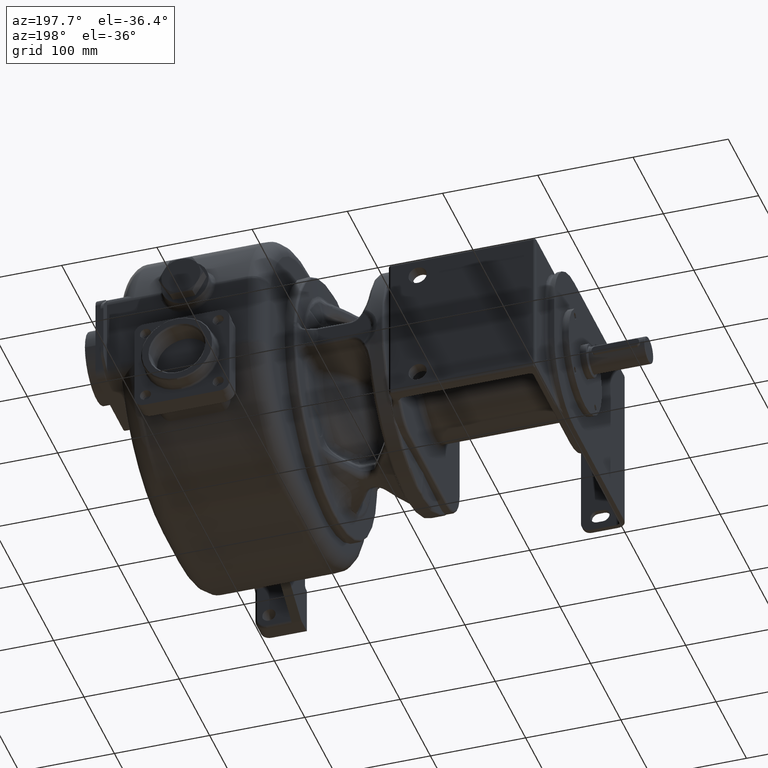
[diagram: clean part render]
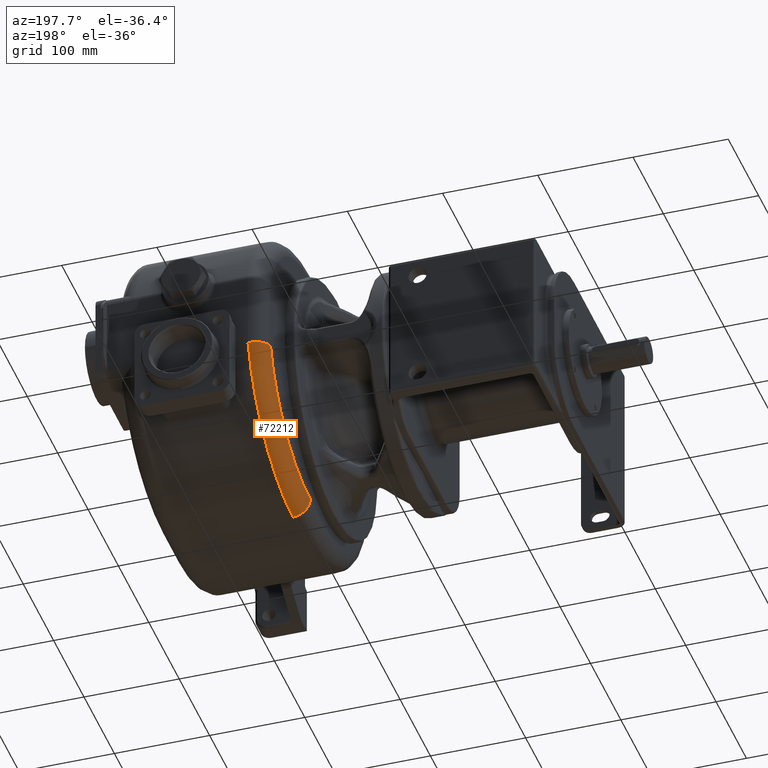
[diagram: same view with one face highlighted and labeled with its STEP entity id]
A machine part, auxiliary view. The second image highlights one B-rep face of the part: STEP entity #72212.
In plain terms, the highlighted toroidal blend (fillet) surface has major radius 136 mm and minor (blend) radius 18 mm.
Its self-contained STEP definition (entity closure, byte-faithful):
#342=CARTESIAN_POINT('',(-1.05E2,2.111789489881E2,-9.5E0));
#343=DIRECTION('',(-1.E0,0.E0,0.E0));
#344=DIRECTION('',(0.E0,9.619201134888E-1,-2.733307433600E-1));
#345=AXIS2_PLACEMENT_3D('',#342,#343,#344);
#25226=CARTESIAN_POINT('',(-8.7E1,2.111789489881E2,-9.5E0));
#25227=DIRECTION('',(-1.E0,0.E0,0.E0));
#25228=DIRECTION('',(0.E0,9.635285819272E-1,-2.676054405451E-1));
#25229=AXIS2_PLACEMENT_3D('',#25226,#25227,#25228);
#26001=CARTESIAN_POINT('',(-1.05E2,3.420000000036E2,-4.667327820096E1));
#26002=CARTESIAN_POINT('',(-1.049998920679E2,3.422004800343E2,
-4.672001957167E1));
#26003=CARTESIAN_POINT('',(-1.049930001228E2,3.426008132062E2,
-4.681511844680E1));
#26004=CARTESIAN_POINT('',(-1.049613114703E2,3.432005728086E2,
-4.695434824712E1));
#26005=CARTESIAN_POINT('',(-1.049087504277E2,3.437981325680E2,
-4.709399123800E1));
#26006=CARTESIAN_POINT('',(-1.048353213802E2,3.443931730072E2,
-4.723281240541E1));
#26007=CARTESIAN_POINT('',(-1.047411627606E2,3.449850836100E2,
-4.737093117566E1));
#26008=CARTESIAN_POINT('',(-1.046263831929E2,3.455733472332E2,
-4.750808476779E1));
#26009=CARTESIAN_POINT('',(-1.044911042318E2,3.461574178532E2,
-4.764416438861E1));
#26010=CARTESIAN_POINT('',(-1.043354490496E2,3.467368317722E2,
-4.777875996404E1));
#26011=CARTESIAN_POINT('',(-1.041595718797E2,3.473109486064E2,
-4.791179503436E1));
#26012=CARTESIAN_POINT('',(-1.039636383651E2,3.478791419007E2,
-4.804321077046E1));
#26013=CARTESIAN_POINT('',(-1.037478404851E2,3.484407542396E2,
-4.817293368687E1));
#26014=CARTESIAN_POINT('',(-1.035124586469E2,3.489949797538E2,
-4.830085331073E1));
#26015=CARTESIAN_POINT('',(-1.032578036639E2,3.495410541776E2,
-4.842685189824E1));
#26016=CARTESIAN_POINT('',(-1.029842319887E2,3.500782077933E2,
-4.855083056239E1));
#26017=CARTESIAN_POINT('',(-1.026920523773E2,3.506059510813E2,
-4.867233009499E1));
#26018=CARTESIAN_POINT('',(-1.023815599216E2,3.511237285840E2,
-4.879132760336E1));
#26019=CARTESIAN_POINT('',(-1.020530556969E2,3.516310111193E2,
-4.890773923915E1));
#26020=CARTESIAN_POINT('',(-1.017069160043E2,3.521271774249E2,
-4.902147450904E1));
#26021=CARTESIAN_POINT('',(-1.013435848557E2,3.526115668203E2,
-4.913241783386E1));
#26022=CARTESIAN_POINT('',(-1.009635299563E2,3.530835431697E2,
-4.924047189872E1));
#26023=CARTESIAN_POINT('',(-1.005672264549E2,3.535425351767E2,
-4.934547374055E1));
#26024=CARTESIAN_POINT('',(-1.001551280531E2,3.539880697965E2,
-4.944715749621E1));
#26025=CARTESIAN_POINT('',(-9.972771169766E1,3.544196081427E2,
-4.954551648368E1));
#26026=CARTESIAN_POINT('',(-9.928547184554E1,3.548366461037E2,
-4.964047581861E1));
#26027=CARTESIAN_POINT('',(-9.882893634059E1,3.552386782256E2,
-4.973197138734E1));
#26028=CARTESIAN_POINT('',(-9.835864837534E1,3.556252277999E2,
-4.981991547863E1));
#26029=CARTESIAN_POINT('',(-9.787517309802E1,3.559958240894E2,
-4.990425964529E1));
#26030=CARTESIAN_POINT('',(-9.737904028696E1,3.563501057005E2,
-4.998477871238E1));
#26031=CARTESIAN_POINT('',(-9.687077358434E1,3.566877096687E2,
-5.006134582619E1));
#26032=CARTESIAN_POINT('',(-9.635090000843E1,3.570082525635E2,
-5.013396458804E1));
#26033=CARTESIAN_POINT('',(-9.582000889400E1,3.573113453613E2,
-5.020258617476E1));
#26034=CARTESIAN_POINT('',(-9.527877076211E1,3.575965842883E2,
-5.026715678436E1));
#26035=CARTESIAN_POINT('',(-9.472785915100E1,3.578636073572E2,
-5.032760680043E1));
#26036=CARTESIAN_POINT('',(-9.416796474182E1,3.581120747903E2,
-5.038388463492E1));
#26037=CARTESIAN_POINT('',(-9.359978939788E1,3.583417150725E2,
-5.043580513144E1));
#26038=CARTESIAN_POINT('',(-9.302403262914E1,3.585522455506E2,
-5.048334864353E1));
#26039=CARTESIAN_POINT('',(-9.244141675930E1,3.587434082817E2,
-5.052649713033E1));
#26040=CARTESIAN_POINT('',(-9.185258407772E1,3.589150031108E2,
-5.056522970152E1));
#26041=CARTESIAN_POINT('',(-9.125817062831E1,3.590668529178E2,
-5.059951609771E1));
#26042=CARTESIAN_POINT('',(-9.065881455892E1,3.591988001807E2,
-5.062931726637E1));
#26043=CARTESIAN_POINT('',(-9.005517137775E1,3.593107077206E2,
-5.065457622052E1));
#26044=CARTESIAN_POINT('',(-8.944792509476E1,3.594024568183E2,
-5.067520719249E1));
#26045=CARTESIAN_POINT('',(-8.883788387116E1,3.594739140186E2,
-5.069126285896E1));
#26046=CARTESIAN_POINT('',(-8.822554032728E1,3.595249802979E2,
-5.070275270280E1));
#26047=CARTESIAN_POINT('',(-8.761258411664E1,3.595556172886E2,
-5.070967791487E1));
#26048=CARTESIAN_POINT('',(-8.720170431318E1,3.595623509760E2,
-5.071123483457E1));
#26049=CARTESIAN_POINT('',(-8.699601553717E1,3.595623477910E2,
-5.071124632752E1));
#26051=CARTESIAN_POINT('',(-8.7E1,2.111789489881E2,-1.455E2));
#26052=DIRECTION('',(0.E0,-1.E0,0.E0));
#26053=DIRECTION('',(-1.E0,0.E0,0.E0));
#26054=AXIS2_PLACEMENT_3D('',#26051,#26052,#26053);
#28620=CARTESIAN_POINT('',(-1.05E2,3.420000000009E2,-4.667319792734E1));
#28622=VERTEX_POINT('',#28620);
#28623=CARTESIAN_POINT('',(-1.05E2,2.111789489881E2,-1.455E2));
#28624=VERTEX_POINT('',#28623);
#28625=CARTESIAN_POINT('',(-8.7E1,3.595623506049E2,-5.071123784395E1));
#28626=CARTESIAN_POINT('',(-8.7E1,2.111789489881E2,-1.635E2));
#28627=VERTEX_POINT('',#28625);
#28628=VERTEX_POINT('',#28626);
#72200=CARTESIAN_POINT('',(-8.7E1,2.111789489881E2,-9.5E0));
#72201=DIRECTION('',(-1.E0,0.E0,0.E0));
#72202=DIRECTION('',(0.E0,-6.039586170138E-1,7.970156767184E-1));
#72203=AXIS2_PLACEMENT_3D('',#72200,#72201,#72202);
#72204=TOROIDAL_SURFACE('',#72203,1.36E2,1.8E1);
#72205=ORIENTED_EDGE('',*,*,#31242,.T.);
#72207=ORIENTED_EDGE('',*,*,#72206,.T.);
#72208=ORIENTED_EDGE('',*,*,#71195,.F.);
#72209=ORIENTED_EDGE('',*,*,#72194,.F.);
#72210=EDGE_LOOP('',(#72205,#72207,#72208,#72209));
#72211=FACE_OUTER_BOUND('',#72210,.F.);
#72212=ADVANCED_FACE('',(#72211),#72204,.T.);
#346=CIRCLE('',#345,1.36E2);
#25230=CIRCLE('',#25229,1.54E2);
#26050=B_SPLINE_CURVE_WITH_KNOTS('',3,(#26001,#26002,#26003,#26004,#26005,
#26006,#26007,#26008,#26009,#26010,#26011,#26012,#26013,#26014,#26015,#26016,
#26017,#26018,#26019,#26020,#26021,#26022,#26023,#26024,#26025,#26026,#26027,
#26028,#26029,#26030,#26031,#26032,#26033,#26034,#26035,#26036,#26037,#26038,
#26039,#26040,#26041,#26042,#26043,#26044,#26045,#26046,#26047,#26048,#26049),
.UNSPECIFIED.,.F.,.F.,(4,1,1,1,1,1,1,1,1,1,1,1,1,1,1,1,1,1,1,1,1,1,1,1,1,1,1,1,
1,1,1,1,1,1,1,1,1,1,1,1,1,1,1,1,1,1,4),(0.E0,2.173913043478E-2,
4.347826086957E-2,6.521739130435E-2,8.695652173913E-2,1.086956521739E-1,
1.304347826087E-1,1.521739130435E-1,1.739130434783E-1,1.956521739130E-1,
2.173913043478E-1,2.391304347826E-1,2.608695652174E-1,2.826086956522E-1,
3.043478260870E-1,3.260869565217E-1,3.478260869565E-1,3.695652173913E-1,
3.913043478261E-1,4.130434782609E-1,4.347826086957E-1,4.565217391304E-1,
4.782608695652E-1,5.E-1,5.217391304348E-1,5.434782608696E-1,5.652173913043E-1,
5.869565217391E-1,6.086956521739E-1,6.304347826087E-1,6.521739130435E-1,
6.739130434783E-1,6.956521739130E-1,7.173913043478E-1,7.391304347826E-1,
7.608695652174E-1,7.826086956522E-1,8.043478260870E-1,8.260869565217E-1,
8.478260869565E-1,8.695652173913E-1,8.913043478261E-1,9.130434782609E-1,
9.347826086957E-1,9.565217391304E-1,9.782608695652E-1,1.E0),.UNSPECIFIED.);
#26055=CIRCLE('',#26054,1.8E1);
#31242=EDGE_CURVE('',#28622,#28624,#346,.T.);
#71195=EDGE_CURVE('',#28627,#28628,#25230,.T.);
#72194=EDGE_CURVE('',#28622,#28627,#26050,.T.);
#72206=EDGE_CURVE('',#28624,#28628,#26055,.T.);